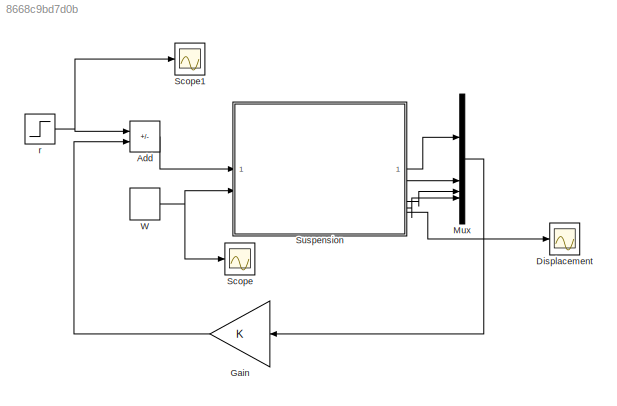
MODEL slx_8668c9bd7d0b
KIND model
CONFIG AbsTol = 1e-3
CONFIG EnableMultiTasking = on
CONFIG FixedStep = auto
CONFIG MaxStep = 1e-2
CONFIG MinStep = auto
CONFIG RelTol = 1e-3
CONFIG SampleTimeConstraint = Unconstrained
CONFIG SolverName = VariableStepAuto
CONFIG StartTime = 0.0
CONFIG StopTime = 20
BLOCK [Sum] Add
  IconShape = rectangular
  Inputs = +-
BLOCK [Scope] Displacement
  Floating = off
  NumInputPorts = 1
  ScopeSpecificationString = Simulink.scopes.TimeScopeBlockCfg('CurrentConfiguration', extmgr.ConfigurationSet(extmgr.Configuration('Core','General UI',true),extmgr.Configuration('Core','Source UI',true),extmgr.Configuration('Sources','WiredSimulink',true,'DataLoggingVariableName','ScopeData1'),extmgr.Configuration('Visuals','Time Domain',true,'SerializedDisplays',{struct('MinYLimReal','-0.97397','MaxYLimReal','0.6818','YLabe...<+1511ch>
BLOCK [Gain] Gain
  Gain = K
  Multiplication = Matrix(K*u)
BLOCK [Mux] Mux
  DisplayOption = bar
BLOCK [Scope] Scope
  Floating = off
  NumInputPorts = 1
  ScopeSpecificationString = Simulink.scopes.TimeScopeBlockCfg('CurrentConfiguration', extmgr.ConfigurationSet(extmgr.Configuration('Core','General UI',true),extmgr.Configuration('Core','Source UI',true),extmgr.Configuration('Sources','WiredSimulink',true,'DataLoggingVariableName','ScopeData2'),extmgr.Configuration('Visuals','Time Domain',true),extmgr.Configuration('Tools','Plot Navigation',true),extmgr.Configuration('Tools',...<+40ch>
BLOCK [Scope] Scope1
  Floating = off
  NumInputPorts = 1
  ScopeSpecificationString = Simulink.scopes.TimeScopeBlockCfg('CurrentConfiguration', extmgr.ConfigurationSet(extmgr.Configuration('Core','General UI',true),extmgr.Configuration('Core','Source UI',true),extmgr.Configuration('Sources','WiredSimulink',true,'DataLoggingVariableName','ScopeData3'),extmgr.Configuration('Visuals','Time Domain',true),extmgr.Configuration('Tools','Plot Navigation',true),extmgr.Configuration('Tools',...<+40ch>
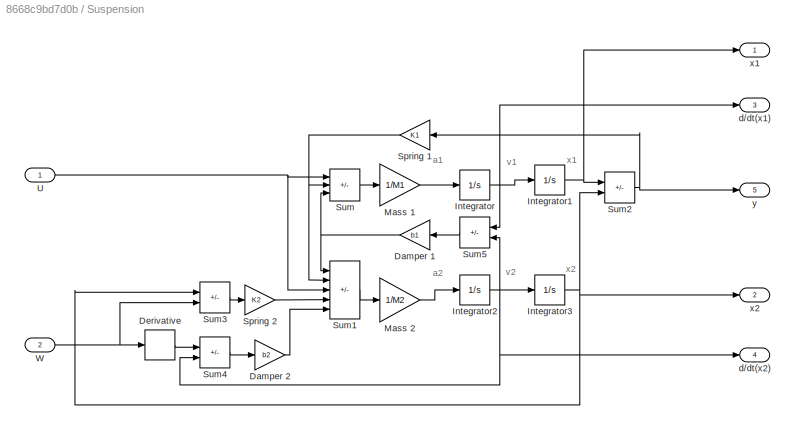
BLOCK [SubSystem] Suspension
BLOCK [Gain] Suspension/Damper 1
  Gain = b1
  OutDataTypeStr = Inherit: Same as input
  ParamDataTypeStr = Inherit: Same as input
  SaturateOnIntegerOverflow = on
BLOCK [Gain] Suspension/Damper 2
  Gain = b2
  OutDataTypeStr = Inherit: Same as input
  ParamDataTypeStr = Inherit: Same as input
  SaturateOnIntegerOverflow = on
BLOCK [Derivative] Suspension/Derivative
BLOCK [Integrator] Suspension/Integrator
BLOCK [Integrator] Suspension/Integrator1
BLOCK [Integrator] Suspension/Integrator2
BLOCK [Integrator] Suspension/Integrator3
BLOCK [Gain] Suspension/Mass 1
  Gain = 1/M1
  OutDataTypeStr = Inherit: Same as input
  ParamDataTypeStr = Inherit: Same as input
  SaturateOnIntegerOverflow = on
BLOCK [Gain] Suspension/Mass 2
  Gain = 1/M2
  OutDataTypeStr = Inherit: Same as input
  ParamDataTypeStr = Inherit: Same as input
  SaturateOnIntegerOverflow = on
BLOCK [Gain] Suspension/Spring 1
  Gain = K1
  OutDataTypeStr = Inherit: Same as input
  ParamDataTypeStr = Inherit: Same as input
  SaturateOnIntegerOverflow = on
BLOCK [Gain] Suspension/Spring 2
  Gain = K2
  OutDataTypeStr = Inherit: Same as input
  ParamDataTypeStr = Inherit: Same as input
  SaturateOnIntegerOverflow = on
BLOCK [Sum] Suspension/Sum
  IconShape = rectangular
  InputSameDT = on
  Inputs = +--
  OutDataTypeStr = Inherit: Same as first input
  SaturateOnIntegerOverflow = on
BLOCK [Sum] Suspension/Sum1
  IconShape = rectangular
  InputSameDT = on
  Inputs = ++-++
  OutDataTypeStr = Inherit: Same as first input
  SaturateOnIntegerOverflow = on
BLOCK [Sum] Suspension/Sum2
  IconShape = rectangular
  InputSameDT = on
  Inputs = +-
  OutDataTypeStr = Inherit: Same as first input
  SaturateOnIntegerOverflow = on
BLOCK [Sum] Suspension/Sum3
  IconShape = rectangular
  InputSameDT = on
  Inputs = -+
  OutDataTypeStr = Inherit: Same as first input
  SaturateOnIntegerOverflow = on
BLOCK [Sum] Suspension/Sum4
  IconShape = rectangular
  InputSameDT = on
  Inputs = +-
  OutDataTypeStr = Inherit: Same as first input
  SaturateOnIntegerOverflow = on
BLOCK [Sum] Suspension/Sum5
  IconShape = rectangular
  InputSameDT = on
  Inputs = +-
  OutDataTypeStr = Inherit: Same as first input
  SaturateOnIntegerOverflow = on
BLOCK [Inport] Suspension/U
BLOCK [Inport] Suspension/W
  Port = 2
BLOCK [Outport] Suspension/d//dt(x1)
  NameLocation = top
  Port = 3
  VectorParamsAs1DForOutWhenUnconnected = off
BLOCK [Outport] Suspension/d//dt(x2)
  Port = 4
  VectorParamsAs1DForOutWhenUnconnected = off
BLOCK [Outport] Suspension/x1
  VectorParamsAs1DForOutWhenUnconnected = off
BLOCK [Outport] Suspension/x2
  Port = 2
  VectorParamsAs1DForOutWhenUnconnected = off
BLOCK [Outport] Suspension/y
  Port = 5
  VectorParamsAs1DForOutWhenUnconnected = off
BLOCK [DiscretePulseGenerator] W
  Period = 100
  PulseType = Time based
  PulseWidth = 0.1
BLOCK [Step] r
  After = 0
  SampleTime = 0
  Time = 0
ANNOTATION Suspension: a1
ANNOTATION Suspension: a2
ANNOTATION Suspension: v1
ANNOTATION Suspension: v2
ANNOTATION Suspension: x1
ANNOTATION Suspension: x2
LINE Add:1 -> Suspension:1
LINE Gain:1 -> Add:2
LINE Mux:1 -> Gain:1
NET Suspension/Damper 1:1 -> Suspension/Sum1:1, Suspension/Sum:3
LINE Suspension/Damper 2:1 -> Suspension/Sum1:5
LINE Suspension/Derivative:1 -> Suspension/Sum4:1
NET Suspension/Integrator1:1 -> Suspension/Sum2:1, Suspension/x1:1
NET Suspension/Integrator2:1 -> Suspension/Integrator3:1, Suspension/Sum4:2, Suspension/Sum5:2, Suspension/d//dt(x2):1
NET Suspension/Integrator3:1 -> Suspension/Sum2:2, Suspension/Sum3:1, Suspension/x2:1
NET Suspension/Integrator:1 -> Suspension/Integrator1:1, Suspension/Sum5:1, Suspension/d//dt(x1):1
LINE Suspension/Mass 1:1 -> Suspension/Integrator:1
LINE Suspension/Mass 2:1 -> Suspension/Integrator2:1
NET Suspension/Spring 1:1 -> Suspension/Sum1:2, Suspension/Sum:2
LINE Suspension/Spring 2:1 -> Suspension/Sum1:4
LINE Suspension/Sum1:1 -> Suspension/Mass 2:1
NET Suspension/Sum2:1 -> Suspension/Spring 1:1, Suspension/y:1
LINE Suspension/Sum3:1 -> Suspension/Spring 2:1
LINE Suspension/Sum4:1 -> Suspension/Damper 2:1
LINE Suspension/Sum5:1 -> Suspension/Damper 1:1
LINE Suspension/Sum:1 -> Suspension/Mass 1:1
NET Suspension/U:1 -> Suspension/Sum1:3, Suspension/Sum:1
NET Suspension/W:1 -> Suspension/Derivative:1, Suspension/Sum3:2
LINE Suspension:1 -> Mux:1
LINE Suspension:2 -> Mux:2
LINE Suspension:3 -> Mux:3
LINE Suspension:4 -> Mux:4
LINE Suspension:5 -> Displacement:1
NET W:1 -> Scope:1, Suspension:2
NET r:1 -> Add:1, Scope1:1
note: NET lines group one-source signal fan-out (src -> all destinations, sorted); 1:1 wires keep LINE
